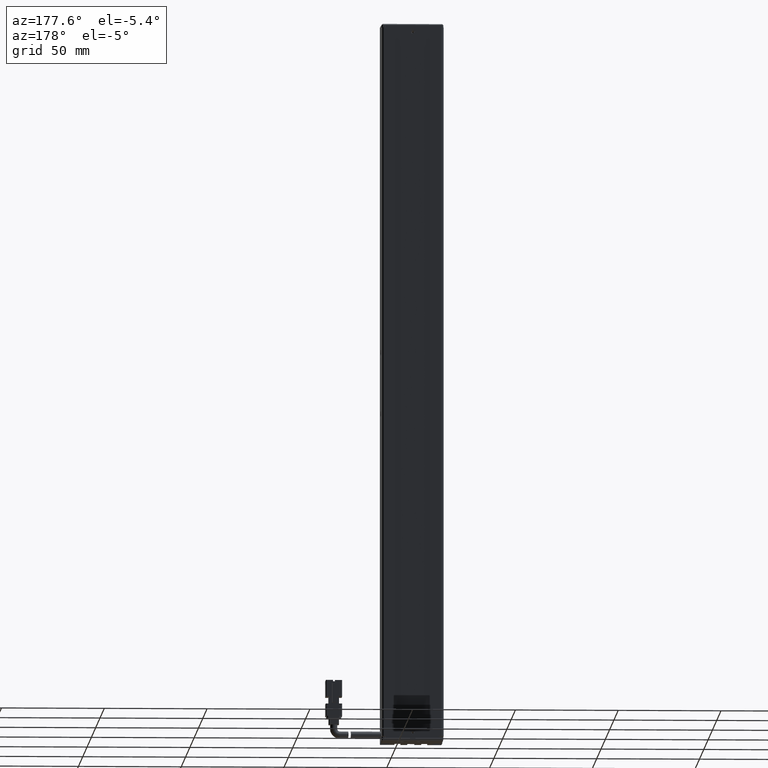
[diagram: clean part render]
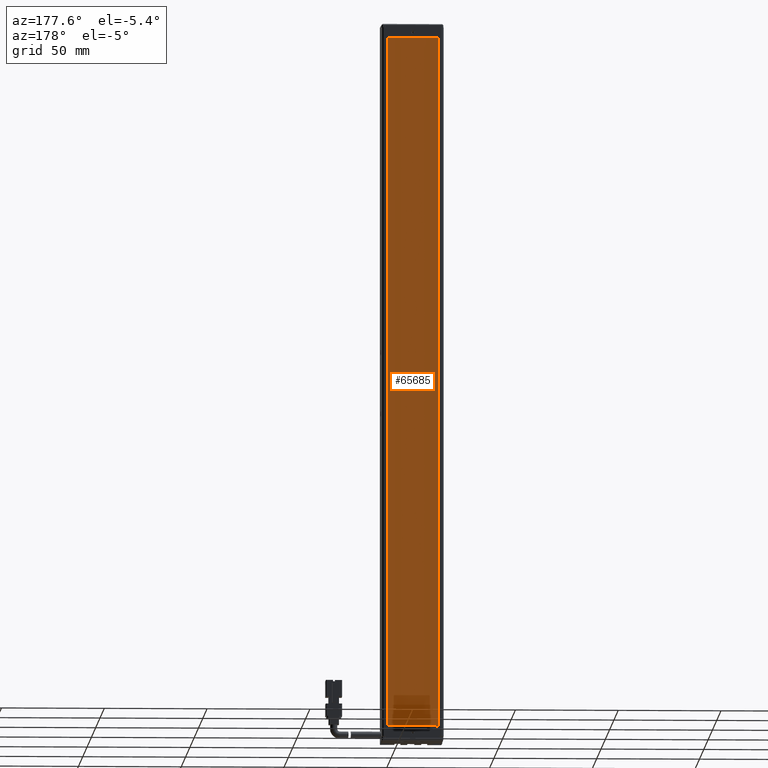
[diagram: same view with one face highlighted and labeled with its STEP entity id]
A machine part, auxiliary view. The second image highlights one B-rep face of the part: STEP entity #65685.
In plain terms, the highlighted planar face has unit normal (0, 1, 0).
Its self-contained STEP definition (entity closure, byte-faithful):
#2593 = CARTESIAN_POINT ( 'NONE',  ( 53.32537974683541600, 34.29594479660387000, 53.15000000000005500 ) ) ;
#4963 = DIRECTION ( 'NONE',  ( 0.0000000000000000000, 1.000000000000000000, 0.0000000000000000000 ) ) ;
#7636 = AXIS2_PLACEMENT_3D ( 'NONE', #36178, #4963, #41394 ) ;
#8531 = CARTESIAN_POINT ( 'NONE',  ( 28.52537974683541600, 34.29594479660387000, 53.15000000000005500 ) ) ;
#11102 = EDGE_LOOP ( 'NONE', ( #25592, #49520, #11952, #30311 ) ) ;
#11428 = VECTOR ( 'NONE', #13747, 1000.000000000000000 ) ;
#11630 = CARTESIAN_POINT ( 'NONE',  ( 28.52537974683541600, 34.29594479660387000, -282.8499999999999100 ) ) ;
#11952 = ORIENTED_EDGE ( 'NONE', *, *, #15740, .T. ) ;
#13097 = DIRECTION ( 'NONE',  ( 0.0000000000000000000, 0.0000000000000000000, -1.000000000000000000 ) ) ;
#13747 = DIRECTION ( 'NONE',  ( 1.000000000000000000, 0.0000000000000000000, 0.0000000000000000000 ) ) ;
#15278 = EDGE_CURVE ( 'NONE', #58988, #45132, #47674, .T. ) ;
#15740 = EDGE_CURVE ( 'NONE', #33698, #66791, #28840, .T. ) ;
#19999 = VECTOR ( 'NONE', #13097, 1000.000000000000000 ) ;
#20190 = VECTOR ( 'NONE', #64770, 1000.000000000000000 ) ;
#20997 = CARTESIAN_POINT ( 'NONE',  ( 28.52537974683541600, 34.29594479660387000, 53.15000000000005500 ) ) ;
#25592 = ORIENTED_EDGE ( 'NONE', *, *, #15278, .T. ) ;
#27170 = EDGE_CURVE ( 'NONE', #66791, #58988, #39166, .T. ) ;
#28707 = FACE_OUTER_BOUND ( 'NONE', #11102, .T. ) ;
#28840 = LINE ( 'NONE', #11630, #53227 ) ;
#30311 = ORIENTED_EDGE ( 'NONE', *, *, #27170, .T. ) ;
#30607 = CARTESIAN_POINT ( 'NONE',  ( 53.32537974683541600, 34.29594479660387000, 53.15000000000005500 ) ) ;
#33698 = VERTEX_POINT ( 'NONE', #49722 ) ;
#36178 = CARTESIAN_POINT ( 'NONE',  ( 0.0000000000000000000, 34.29594479660387000, 0.0000000000000000000 ) ) ;
#37503 = EDGE_CURVE ( 'NONE', #45132, #33698, #47857, .T. ) ;
#39166 = LINE ( 'NONE', #8531, #11428 ) ;
#41179 = PLANE ( 'NONE',  #7636 ) ;
#41394 = DIRECTION ( 'NONE',  ( 0.0000000000000000000, -0.0000000000000000000, 1.000000000000000000 ) ) ;
#45132 = VERTEX_POINT ( 'NONE', #50896 ) ;
#47674 = LINE ( 'NONE', #2593, #19999 ) ;
#47857 = LINE ( 'NONE', #59227, #20190 ) ;
#49520 = ORIENTED_EDGE ( 'NONE', *, *, #37503, .T. ) ;
#49722 = CARTESIAN_POINT ( 'NONE',  ( 28.52537974683541600, 34.29594479660387000, -282.8499999999999100 ) ) ;
#50896 = CARTESIAN_POINT ( 'NONE',  ( 53.32537974683541600, 34.29594479660387000, -282.8499999999999100 ) ) ;
#53227 = VECTOR ( 'NONE', #53291, 1000.000000000000000 ) ;
#53291 = DIRECTION ( 'NONE',  ( 0.0000000000000000000, 0.0000000000000000000, 1.000000000000000000 ) ) ;
#58988 = VERTEX_POINT ( 'NONE', #30607 ) ;
#59227 = CARTESIAN_POINT ( 'NONE',  ( 53.32537974683541600, 34.29594479660387000, -282.8499999999999100 ) ) ;
#64770 = DIRECTION ( 'NONE',  ( -1.000000000000000000, 0.0000000000000000000, 0.0000000000000000000 ) ) ;
#65685 = ADVANCED_FACE ( 'NONE', ( #28707 ), #41179, .T. ) ;
#66791 = VERTEX_POINT ( 'NONE', #20997 ) ;